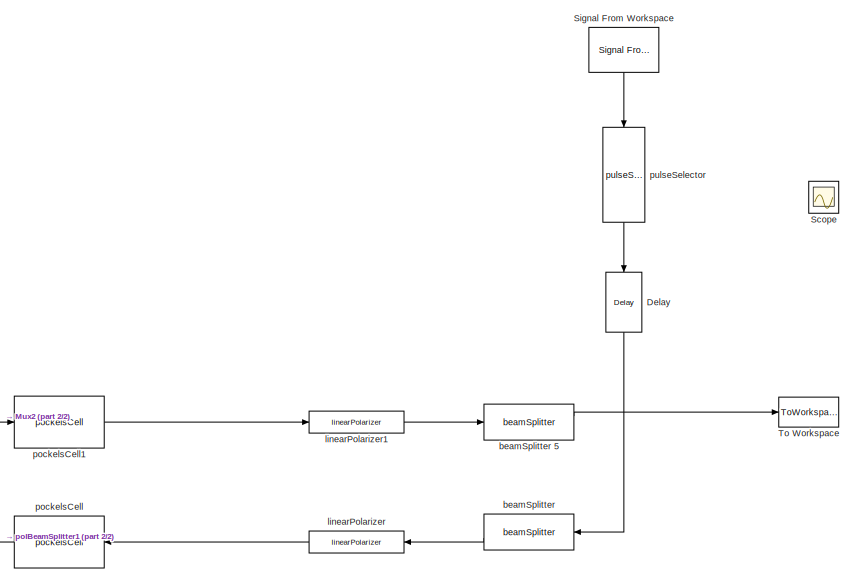
[diagram: root canvas - part 1/2, top right region]
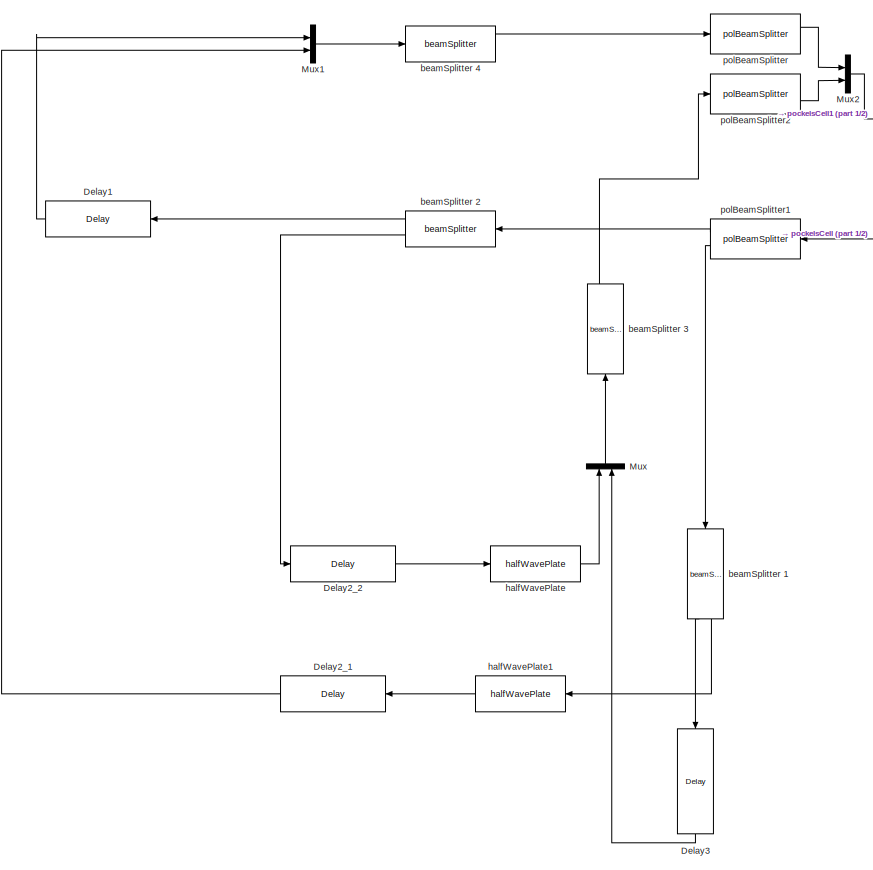
[diagram: root canvas - part 2/2, middle left region]
MODEL slx_f4839af25769
KIND model
CONFIG InitFcn = initialization_new;
CONFIG StopFcn = % OutputPlotting;\n\n[ times,I,Q,U,V,widths,IDs,StateHistoryArrays ] = IDtoPulseData( simout );\n[timeAbsError, powerAbsError, residualAbsError, timeMSE, powerMSE, residualPowerMSE] = analyzePulseTrain(IDs, T, n);\n
BLOCK [Reference] Delay  REF=BlockLib/Delay
  DelayAmt = 3e-9
  Ports = [1, 1]
  SourceBlock = BlockLib/Delay
BLOCK [Reference] Delay1  REF=BlockLib/Delay
  DelayAmt = 10e-9
  Ports = [1, 1]
  SourceBlock = BlockLib/Delay
BLOCK [Reference] Delay2_1  REF=BlockLib/Delay
  DelayAmt = 14.33e-9
  Ports = [1, 1]
  SourceBlock = BlockLib/Delay
BLOCK [Reference] Delay2_2  REF=BlockLib/Delay
  DelayAmt = 14.33e-9
  Ports = [1, 1]
  SourceBlock = BlockLib/Delay
BLOCK [Reference] Delay3  REF=BlockLib/Delay
  DelayAmt = 18.66e-9
  Ports = [1, 1]
  SourceBlock = BlockLib/Delay
BLOCK [Mux] Mux
  DisplayOption = bar
  Inputs = 2
  Ports = [2, 1]
BLOCK [Mux] Mux1
  DisplayOption = bar
  Inputs = 2
  Ports = [2, 1]
BLOCK [Mux] Mux2
  DisplayOption = bar
  Inputs = 2
  Ports = [2, 1]
BLOCK [Scope] Scope
  Floating = off
  NumInputPorts = 1
  Ports = [1]
  ShowLegends = off
BLOCK [Reference] Signal From Workspace  REF=dspsrcs4/Signal From
Workspace
  OutputAfterFinalValue = Setting to zero
  Ports = [0, 1]
  SourceBlock = dspsrcs4/Signal From\nWorkspace
  SourceType = Signal From Workspace
  Ts = 1
  X = inputsignal
  ignoreOrWarnInputAndFrameLengths = off
  nsamps = 1
BLOCK [ToWorkspace] To Workspace
  FixptAsFi = on
  MaxDataPoints = inf
  Ports = [1]
  SampleTime = -1
  Save2DSignal = 3-D array (concatenate along third dimension)
  SaveFormat = Timeseries
  VariableName = simout
BLOCK [Reference] beamSplitter   REF=BlockLib/beamSplitter

  Ports = [1, 2]
  SourceBlock = BlockLib/beamSplitter
  SourceType = SubSystem
BLOCK [Reference] beamSplitter 1  REF=BlockLib/beamSplitter

  Ports = [1, 2]
  SourceBlock = BlockLib/beamSplitter
  SourceType = SubSystem
BLOCK [Reference] beamSplitter 2  REF=BlockLib/beamSplitter

  Ports = [1, 2]
  SourceBlock = BlockLib/beamSplitter
  SourceType = SubSystem
BLOCK [Reference] beamSplitter 3  REF=BlockLib/beamSplitter

  Ports = [1, 2]
  SourceBlock = BlockLib/beamSplitter
  SourceType = SubSystem
BLOCK [Reference] beamSplitter 4  REF=BlockLib/beamSplitter

  Ports = [1, 2]
  SourceBlock = BlockLib/beamSplitter
  SourceType = SubSystem
BLOCK [Reference] beamSplitter 5  REF=BlockLib/beamSplitter

  Ports = [1, 2]
  SourceBlock = BlockLib/beamSplitter
  SourceType = SubSystem
BLOCK [Reference] halfWavePlate  REF=BlockLib/halfWavePlate
  AxisAngle = pi/4
  Ports = [1, 1]
  SourceBlock = BlockLib/halfWavePlate
BLOCK [Reference] halfWavePlate1  REF=BlockLib/halfWavePlate
  AxisAngle = pi/4
  Ports = [1, 1]
  SourceBlock = BlockLib/halfWavePlate
BLOCK [Reference] linearPolarizer  REF=BlockLib/linearPolarizer
  AxisAngle = pi/2
  Ports = [1, 1]
  SourceBlock = BlockLib/linearPolarizer
BLOCK [Reference] linearPolarizer1  REF=BlockLib/linearPolarizer
  AxisAngle = pi/2
  Ports = [1, 1]
  SourceBlock = BlockLib/linearPolarizer
BLOCK [Reference] pockelsCell  REF=BlockLib/pockelsCell
  AxisAngle = pi/4
  OutputDimensions = 1
  PCID = PC2.ID
  Ports = [1, 1]
  SourceBlock = BlockLib/pockelsCell
BLOCK [Reference] pockelsCell1  REF=BlockLib/pockelsCell
  AxisAngle = pi/4
  OutputDimensions = 4
  PCID = PC2.ID
  Ports = [1, 1]
  SourceBlock = BlockLib/pockelsCell
BLOCK [Reference] polBeamSplitter  REF=BlockLib/polBeamSplitter
  Ports = [1, 2]
  SourceBlock = BlockLib/polBeamSplitter
  SourceType = SubSystem
BLOCK [Reference] polBeamSplitter1  REF=BlockLib/polBeamSplitter
  Ports = [1, 2]
  SourceBlock = BlockLib/polBeamSplitter
  SourceType = SubSystem
BLOCK [Reference] polBeamSplitter2  REF=BlockLib/polBeamSplitter
  Ports = [1, 2]
  SourceBlock = BlockLib/polBeamSplitter
  SourceType = SubSystem
BLOCK [Reference] pulseSelector  REF=BlockLib/pulseSelector
  OutputDimensions = 1
  PCID = PC1.ID
  Ports = [1, 1]
  SourceBlock = BlockLib/pulseSelector
LINE Delay1:1 -> Mux1:1
LINE Delay2_1:1 -> Mux1:2
LINE Delay2_2:1 -> halfWavePlate:1
LINE Delay3:1 -> Mux:2
LINE Delay:1 -> beamSplitter :1
LINE Mux1:1 -> beamSplitter 4:1
LINE Mux2:1 -> pockelsCell1:1
LINE Mux:1 -> beamSplitter 3:1
LINE Signal From Workspace:1 -> pulseSelector:1
LINE beamSplitter 1:1 -> Delay3:1
LINE beamSplitter 1:2 -> halfWavePlate1:1
LINE beamSplitter 2:1 -> Delay1:1
LINE beamSplitter 2:2 -> Delay2_2:1
LINE beamSplitter 3:1 -> polBeamSplitter2:1
LINE beamSplitter 4:1 -> polBeamSplitter:1
LINE beamSplitter 5:1 -> To Workspace:1
LINE beamSplitter :2 -> linearPolarizer:1
LINE halfWavePlate1:1 -> Delay2_1:1
LINE halfWavePlate:1 -> Mux:1
LINE linearPolarizer1:1 -> beamSplitter 5:1
LINE linearPolarizer:1 -> pockelsCell:1
LINE pockelsCell1:1 -> linearPolarizer1:1
LINE pockelsCell:1 -> polBeamSplitter1:1
LINE polBeamSplitter1:1 -> beamSplitter 2:1
LINE polBeamSplitter1:2 -> beamSplitter 1:1
LINE polBeamSplitter2:2 -> Mux2:2
LINE polBeamSplitter:1 -> Mux2:1
LINE pulseSelector:1 -> Delay:1
